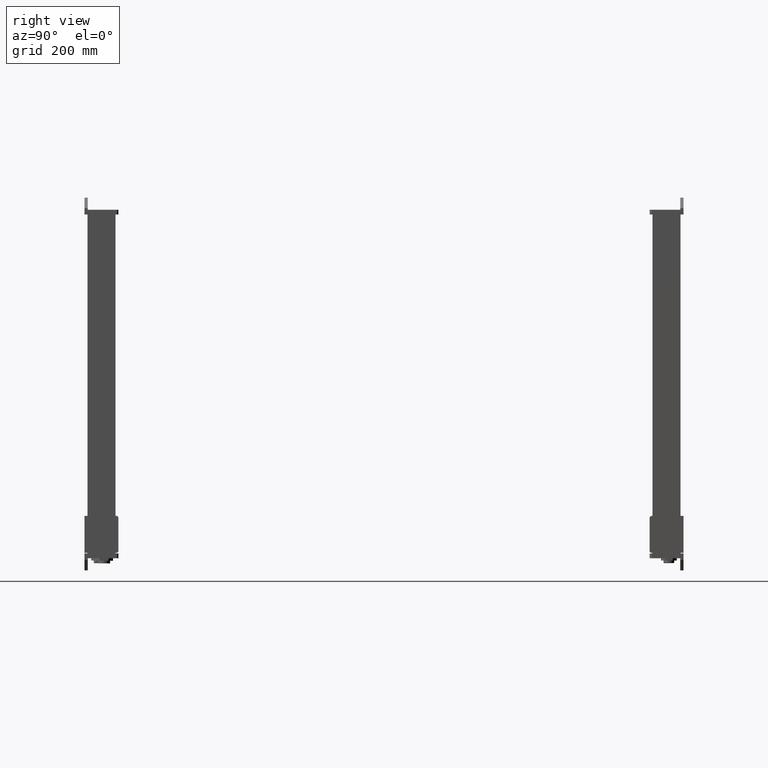
[diagram: clean part render]
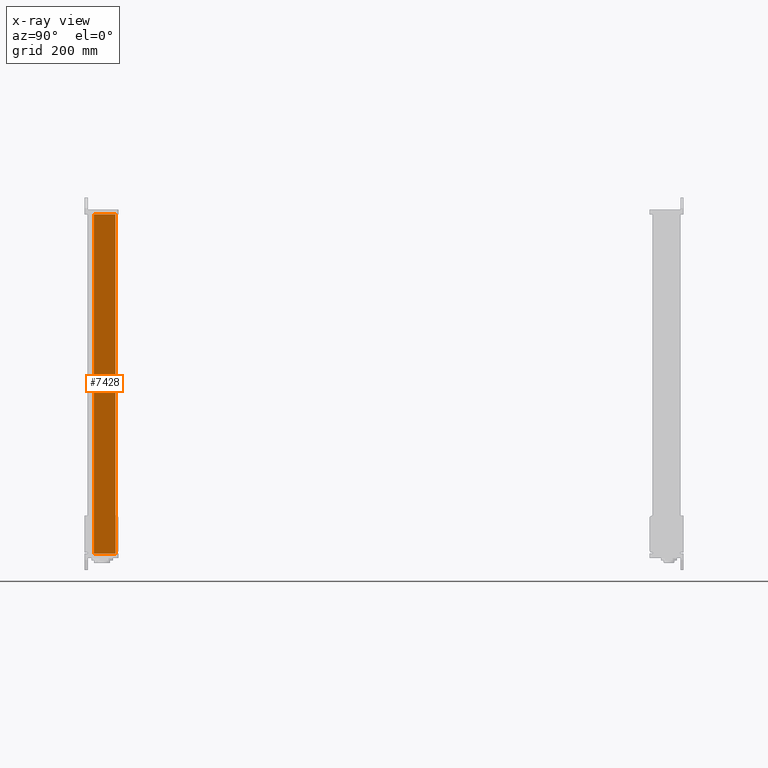
[diagram: x-ray — body ghosted, one internal face saturated and labeled with its STEP entity id]
A machine part, right view, then the same camera in x-ray: the body is ghosted and one INTERNAL B-rep face — a face not visible from any outside direction — is saturated and labeled: STEP entity #7428.
In plain terms, the highlighted planar face has unit normal (1, 0, 0).
Its self-contained STEP definition (entity closure, byte-faithful):
#7376=CARTESIAN_POINT('Vertex',(12.,12.,0.)) ;
#7379=CARTESIAN_POINT('Line Origine',(12.,12.,315.5)) ;
#7383=CARTESIAN_POINT('Vertex',(12.,12.,631.)) ;
#7398=CARTESIAN_POINT('Axis2P3D Location',(12.,12.,0.)) ;
#7403=CARTESIAN_POINT('Line Origine',(12.,32.,0.)) ;
#7407=CARTESIAN_POINT('Vertex',(12.,52.,0.)) ;
#7410=CARTESIAN_POINT('Line Origine',(12.,52.,315.5)) ;
#7414=CARTESIAN_POINT('Vertex',(12.,52.,631.)) ;
#7417=CARTESIAN_POINT('Line Origine',(12.,32.,631.)) ;
#7380=DIRECTION('Vector Direction',(0.,0.,1.)) ;
#7399=DIRECTION('Axis2P3D Direction',(1.,0.,0.)) ;
#7400=DIRECTION('Axis2P3D XDirection',(0.,1.,0.)) ;
#7404=DIRECTION('Vector Direction',(0.,1.,0.)) ;
#7411=DIRECTION('Vector Direction',(0.,0.,1.)) ;
#7418=DIRECTION('Vector Direction',(0.,1.,0.)) ;
#7401=AXIS2_PLACEMENT_3D('Plane Axis2P3D',#7398,#7399,#7400) ;
#7423=ORIENTED_EDGE('',*,*,#7385,.F.) ;
#7424=ORIENTED_EDGE('',*,*,#7409,.T.) ;
#7425=ORIENTED_EDGE('',*,*,#7416,.T.) ;
#7426=ORIENTED_EDGE('',*,*,#7421,.F.) ;
#7381=VECTOR('Line Direction',#7380,1.) ;
#7405=VECTOR('Line Direction',#7404,1.) ;
#7412=VECTOR('Line Direction',#7411,1.) ;
#7419=VECTOR('Line Direction',#7418,1.) ;
#7428=ADVANCED_FACE('PartBody',(#7427),#7402,.T.) ;
#7385=EDGE_CURVE('',#7377,#7384,#7382,.T.) ;
#7409=EDGE_CURVE('',#7377,#7408,#7406,.T.) ;
#7416=EDGE_CURVE('',#7408,#7415,#7413,.T.) ;
#7421=EDGE_CURVE('',#7384,#7415,#7420,.T.) ;
#7422=EDGE_LOOP('',(#7423,#7424,#7425,#7426)) ;
#7427=FACE_OUTER_BOUND('',#7422,.T.) ;
#7382=LINE('Line',#7379,#7381) ;
#7406=LINE('Line',#7403,#7405) ;
#7413=LINE('Line',#7410,#7412) ;
#7420=LINE('Line',#7417,#7419) ;
#7402=PLANE('Plane',#7401) ;
#7377=VERTEX_POINT('',#7376) ;
#7384=VERTEX_POINT('',#7383) ;
#7408=VERTEX_POINT('',#7407) ;
#7415=VERTEX_POINT('',#7414) ;